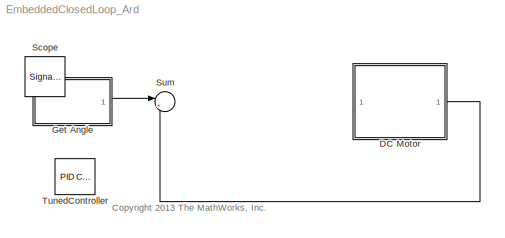
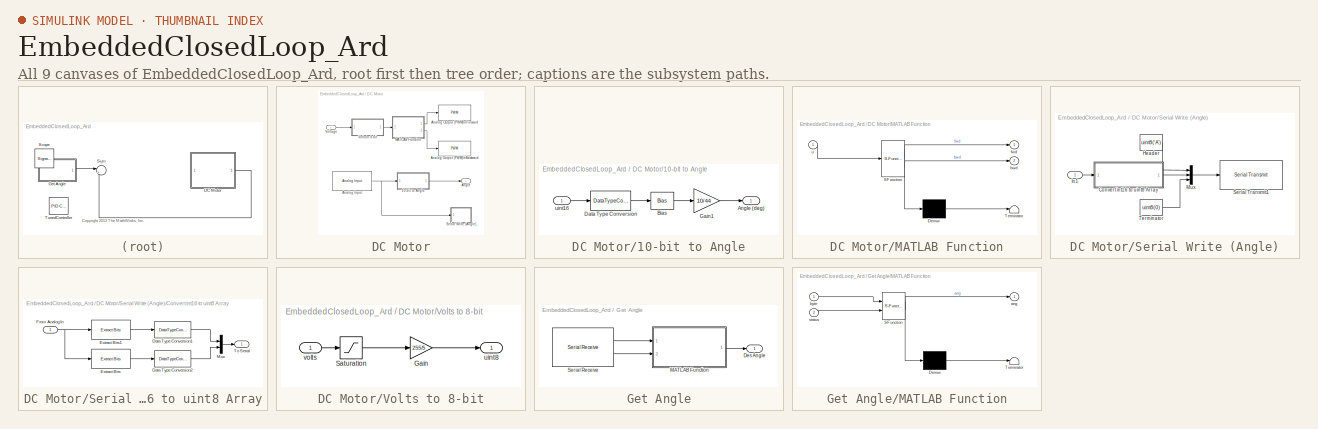
[diagram: thumbnail index - all 9 canvases of the model, root first then tree order]
MODEL EmbeddedClosedLoop_Ard
KIND model
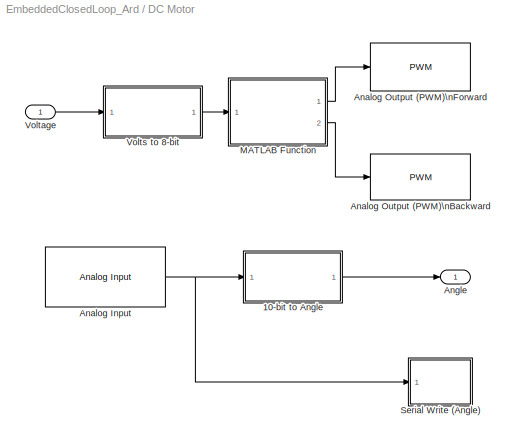
BLOCK [SubSystem] DC Motor
  FunctionWithSeparateData = off
  MaskHideContents = off
  MinAlgLoopOccurrences = off
  Opaque = off
  Ports = [1, 1]
  PropExecContextOutsideSubsystem = off
  RTWSystemCode = Auto
  RequestExecContextInheritance = off
  SID = 50
BLOCK [SubSystem] DC Motor/10-bit to Angle
  FunctionWithSeparateData = off
  MaskHideContents = off
  MinAlgLoopOccurrences = off
  Opaque = off
  Ports = [1, 1]
  PropExecContextOutsideSubsystem = off
  RTWSystemCode = Auto
  RequestExecContextInheritance = off
  SID = 59
BLOCK [Outport] DC Motor/10-bit to Angle/Angle (deg)
  IconDisplay = Port number
  SID = 88
BLOCK [Bias] DC Motor/10-bit to Angle/Bias
  Bias = -500
  SID = 85
  SaturateOnIntegerOverflow = off
BLOCK [DataTypeConversion] DC Motor/10-bit to Angle/Data Type Conversion
  OutDataTypeStr = double
  RndMeth = Floor
  SID = 86
  SaturateOnIntegerOverflow = off
BLOCK [Gain] DC Motor/10-bit to Angle/Gain1
  Gain = 10/44
  OutDataTypeStr = Inherit: Inherit via internal rule
  ParamDataTypeStr = Inherit: Inherit via internal rule
  SID = 87
  SaturateOnIntegerOverflow = off
BLOCK [Inport] DC Motor/10-bit to Angle/uint16
  IconDisplay = Port number
  SID = 84
BLOCK [Reference] DC Motor/Analog Input  REF=arduinolib/Analog Input
  Ports = [0, 1]
  SID = 58
  SourceBlock = arduinolib/Analog Input
  SourceType = Arduino Analog Input
  pinNumber = 0
  sampleTime = 0.01
BLOCK [Reference] DC Motor/Analog Output (PWM)\nBackward  REF=arduinolib/PWM
  Ports = [1]
  SID = 57
  SourceBlock = arduinolib/PWM
  SourceType = Arduino PWM
  pinNumber = 11
BLOCK [Reference] DC Motor/Analog Output (PWM)\nForward  REF=arduinolib/PWM
  Ports = [1]
  SID = 56
  SourceBlock = arduinolib/PWM
  SourceType = Arduino PWM
  pinNumber = 10
BLOCK [Outport] DC Motor/Angle
  IconDisplay = Port number
  SID = 53
BLOCK [SubSystem] DC Motor/MATLAB Function
  ErrorFcn = Stateflow.Translate.translate
  FunctionWithSeparateData = off
  MaskHideContents = off
  MinAlgLoopOccurrences = off
  Opaque = off
  PermitHierarchicalResolution = ExplicitOnly
  Ports = [1, 2]
  PropExecContextOutsideSubsystem = off
  RTWSystemCode = Auto
  RequestExecContextInheritance = off
  SFBlockType = MATLAB Function
  SID = 54
  TreatAsAtomicUnit = on
BLOCK [Demux] DC Motor/MATLAB Function/ Demux 
  Outputs = 1
  Ports = [1, 1]
  SID = 54::50
BLOCK [S-Function] DC Motor/MATLAB Function/ SFunction 
  EnableBusSupport = off
  FunctionName = sf_sfun
  PortCounts = [1 3]
  Ports = [1, 3]
  SID = 54::49
  Tag = Stateflow S-Function EmbeddedClosedLoop_Ard 1
BLOCK [Terminator] DC Motor/MATLAB Function/ Terminator 
  SID = 54::51
BLOCK [Outport] DC Motor/MATLAB Function/bwd
  IconDisplay = Port number
  Port = 2
  SID = 54::10
BLOCK [Outport] DC Motor/MATLAB Function/fwd
  IconDisplay = Port number
  SID = 54::5
BLOCK [Inport] DC Motor/MATLAB Function/u
  IconDisplay = Port number
  SID = 54::1
BLOCK [SubSystem] DC Motor/Serial Write (Angle)
  FunctionWithSeparateData = off
  MaskHideContents = off
  MinAlgLoopOccurrences = off
  Opaque = off
  Ports = [1]
  PropExecContextOutsideSubsystem = off
  RTWSystemCode = Auto
  RequestExecContextInheritance = off
  SID = 65
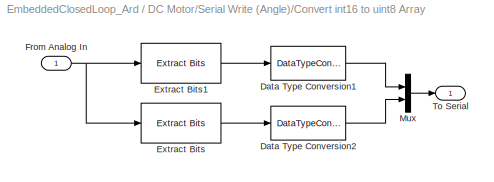
BLOCK [SubSystem] DC Motor/Serial Write (Angle)/Convert int16 to uint8 Array
  FunctionWithSeparateData = off
  MaskHideContents = off
  MinAlgLoopOccurrences = off
  Opaque = off
  Ports = [1, 1]
  PropExecContextOutsideSubsystem = off
  RTWSystemCode = Auto
  RequestExecContextInheritance = off
  SID = 60
BLOCK [DataTypeConversion] DC Motor/Serial Write (Angle)/Convert int16 to uint8 Array/Data Type Conversion1
  ConvertRealWorld = Stored Integer (SI)
  OutDataTypeStr = uint8
  RndMeth = Floor
  SID = 91
  SaturateOnIntegerOverflow = off
BLOCK [DataTypeConversion] DC Motor/Serial Write (Angle)/Convert int16 to uint8 Array/Data Type Conversion2
  ConvertRealWorld = Stored Integer (SI)
  OutDataTypeStr = uint8
  RndMeth = Floor
  SID = 92
  SaturateOnIntegerOverflow = off
BLOCK [Reference] DC Motor/Serial Write (Angle)/Convert int16 to uint8 Array/Extract Bits  REF=simulink/Logic and Bit\nOperations/Extract Bits
  Ports = [1, 1]
  SID = 93
  SourceBlock = simulink/Logic and Bit\nOperations/Extract Bits
  SourceType = Extract Bits
  bitIdxRange = [0 7]
  bitsToExtract = Upper half
  numBits = 8
  outScalingMode = Treat bit field as an integer
BLOCK [Reference] DC Motor/Serial Write (Angle)/Convert int16 to uint8 Array/Extract Bits1  REF=simulink/Logic and Bit\nOperations/Extract Bits
  Ports = [1, 1]
  SID = 94
  SourceBlock = simulink/Logic and Bit\nOperations/Extract Bits
  SourceType = Extract Bits
  bitIdxRange = [0 7]
  bitsToExtract = Lower half
  numBits = 8
  outScalingMode = Treat bit field as an integer
BLOCK [Inport] DC Motor/Serial Write (Angle)/Convert int16 to uint8 Array/From Analog In
  IconDisplay = Port number
  SID = 90
BLOCK [Mux] DC Motor/Serial Write (Angle)/Convert int16 to uint8 Array/Mux
  DisplayOption = bar
  Inputs = 2
  Ports = [2, 1]
  SID = 95
BLOCK [Outport] DC Motor/Serial Write (Angle)/Convert int16 to uint8 Array/To Serial
  IconDisplay = Port number
  SID = 96
BLOCK [Constant] DC Motor/Serial Write (Angle)/Header
  SID = 61
  Value = uint8('A')
BLOCK [Inport] DC Motor/Serial Write (Angle)/In1
  IconDisplay = Port number
  SID = 66
BLOCK [Mux] DC Motor/Serial Write (Angle)/Mux
  DisplayOption = bar
  Inputs = 3
  Ports = [3, 1]
  SID = 62
BLOCK [Reference] DC Motor/Serial Write (Angle)/Serial Transmit1  REF=arduinolib/Serial Transmit
  Ports = [1]
  SID = 64
  SourceBlock = arduinolib/Serial Transmit
  SourceType = Arduino Serial Transmit
  portNumber = 0
BLOCK [Constant] DC Motor/Serial Write (Angle)/Terminator
  SID = 63
  Value = uint8(0)
BLOCK [Inport] DC Motor/Voltage
  IconDisplay = Port number
  SID = 51
BLOCK [SubSystem] DC Motor/Volts to 8-bit
  FunctionWithSeparateData = off
  MaskHideContents = off
  MinAlgLoopOccurrences = off
  Opaque = off
  Ports = [1, 1]
  PropExecContextOutsideSubsystem = off
  RTWSystemCode = Auto
  RequestExecContextInheritance = off
  SID = 55
BLOCK [Gain] DC Motor/Volts to 8-bit/Gain
  Gain = 255/5
  OutDataTypeStr = int16
  ParamDataTypeStr = Inherit: Inherit via internal rule
  SID = 81
  SaturateOnIntegerOverflow = off
BLOCK [Saturate] DC Motor/Volts to 8-bit/Saturation
  InputPortMap = u0
  LowerLimit = -5
  Ports = [1, 1]
  SID = 82
  UpperLimit = 5
BLOCK [Outport] DC Motor/Volts to 8-bit/uint8
  IconDisplay = Port number
  SID = 83
BLOCK [Inport] DC Motor/Volts to 8-bit/volts
  IconDisplay = Port number
  SID = 80
BLOCK [SubSystem] Get Angle
  FunctionWithSeparateData = off
  MaskHideContents = off
  MinAlgLoopOccurrences = off
  Opaque = off
  Ports = [0, 1]
  PropExecContextOutsideSubsystem = off
  RTWSystemCode = Auto
  RequestExecContextInheritance = off
  SID = 31
BLOCK [Outport] Get Angle/Des Angle
  IconDisplay = Port number
  SID = 32
BLOCK [SubSystem] Get Angle/MATLAB Function
  ErrorFcn = Stateflow.Translate.translate
  FunctionWithSeparateData = off
  MaskHideContents = off
  MinAlgLoopOccurrences = off
  Opaque = off
  PermitHierarchicalResolution = ExplicitOnly
  Ports = [2, 1]
  PropExecContextOutsideSubsystem = off
  RTWSystemCode = Auto
  RequestExecContextInheritance = off
  SFBlockType = MATLAB Function
  SID = 30
  TreatAsAtomicUnit = on
BLOCK [Demux] Get Angle/MATLAB Function/ Demux 
  Outputs = 1
  Ports = [1, 1]
  SID = 30::32
BLOCK [S-Function] Get Angle/MATLAB Function/ SFunction 
  EnableBusSupport = off
  FunctionName = sf_sfun
  PortCounts = [2 2]
  Ports = [2, 2]
  SID = 30::31
  Tag = Stateflow S-Function EmbeddedClosedLoop_Ard 2
BLOCK [Terminator] Get Angle/MATLAB Function/ Terminator 
  SID = 30::33
BLOCK [Outport] Get Angle/MATLAB Function/ang
  IconDisplay = Port number
  SID = 30::5
BLOCK [Inport] Get Angle/MATLAB Function/byte
  IconDisplay = Port number
  SID = 30::1
BLOCK [Inport] Get Angle/MATLAB Function/status
  IconDisplay = Port number
  Port = 2
  SID = 30::30
BLOCK [Reference] Get Angle/Serial Receive  REF=arduinolib/Serial Receive
  Ports = [0, 2]
  SID = 47
  SourceBlock = arduinolib/Serial Receive
  SourceType = Arduino Serial Receive
  portNumber = 0
  sampleTime = 0.01
  showOutStatus = on
BLOCK [SignalViewerScope] Scope
  IOType = viewer
  MaxDataPoints = 7500
  NumInputPorts = 2
  Ports = []
  RefreshTime = 0.035000
  SID = 13
  ShowDataMarkers = off
  ShowLegends = off
  TimeRange = 4
  YMax = 80~60
  YMin = 0~-40
BLOCK [Sum] Sum
  IconShape = round
  InputSameDT = off
  Inputs = |+-
  OutDataTypeStr = Inherit: Inherit via internal rule
  Ports = [2, 1]
  SID = 8
  SaturateOnIntegerOverflow = off
BLOCK [Reference] TunedController  REF=simulink/Continuous/PID Controller
  AntiWindupMode = clamping
  Controller = PID
  D = 0.00709098323909587
  DOutDataTypeStr = Inherit: Inherit via internal rule
  DOutMax = []
  DOutMin = []
  DParamDataTypeStr = Inherit: Inherit via internal rule
  DParamMax = []
  DParamMin = []
  ExternalReset = none
  FilterContinuousStateAttributes = ''
  FilterMethod = Forward Euler
  FilterOutDataTypeStr = Inherit: Inherit via internal rule
  FilterOutMax = []
  FilterOutMin = []
  FilterRTWStateStorageClass = Auto
  FilterStateMustResolveToSignalObject = off
  Form = Parallel
  I = 0.0521328237727459
  IOutDataTypeStr = Inherit: Inherit via internal rule
  IOutMax = []
  IOutMin = []
  IParamDataTypeStr = Inherit: Inherit via internal rule
  IParamMax = []
  IParamMin = []
  IgnoreLimit = off
  InitialConditionForFilter = 0
  InitialConditionForIntegrator = 0
  InitialConditionSource = internal
  IntegratorContinuousStateAttributes = ''
  IntegratorMethod = Forward Euler
  IntegratorOutDataTypeStr = Inherit: Inherit via internal rule
  IntegratorOutMax = []
  IntegratorOutMin = []
  IntegratorRTWStateStorageClass = Auto
  IntegratorStateMustResolveToSignalObject = off
  Kb = 1
  KbOutDataTypeStr = Inherit: Inherit via internal rule
  KbOutMax = []
  KbOutMin = []
  KbParamDataTypeStr = Inherit: Inherit via internal rule
  KbParamMax = []
  KbParamMin = []
  Kt = 1
  KtOutDataTypeStr = Inherit: Inherit via internal rule
  KtOutMax = []
  KtOutMin = []
  KtParamDataTypeStr = Inherit: Inherit via internal rule
  KtParamMax = []
  KtParamMin = []
  LimitOutput = on
  LinearizeAsGain = off
  LockScale = off
  LowerSaturationLimit = -5
  N = 12.2947610037998
  NOutDataTypeStr = Inherit: Inherit via internal rule
  NOutMax = []
  NOutMin = []
  NParamDataTypeStr = Inherit: Inherit via internal rule
  NParamMax = []
  NParamMin = []
  P = 0.0932485816318116
  POutDataTypeStr = Inherit: Inherit via internal rule
  POutMax = []
  POutMin = []
  PParamDataTypeStr = Inherit: Inherit via internal rule
  PParamMax = []
  PParamMin = []
  Ports = [1, 1]
  RndMeth = Floor
  SID = 99
  SampleTime = 0.01
  SaturateOnIntegerOverflow = off
  SaturationOutDataTypeStr = Inherit: Same as input
  SaturationOutMax = []
  SaturationOutMin = []
  SourceBlock = simulink/Continuous/PID Controller
  SourceType = PID 1dof
  SumAccumDataTypeStr = Inherit: Inherit via internal rule
  SumDAccumDataTypeStr = Inherit: Inherit via internal rule
  SumDOutDataTypeStr = Inherit: Inherit via internal rule
  SumDOutMax = []
  SumDOutMin = []
  SumI1AccumDataTypeStr = Inherit: Inherit via internal rule
  SumI1OutDataTypeStr = Inherit: Inherit via internal rule
  SumI1OutMax = []
  SumI1OutMin = []
  SumI2AccumDataTypeStr = Inherit: Inherit via internal rule
  SumI2OutDataTypeStr = Inherit: Inherit via internal rule
  SumI2OutMax = []
  SumI2OutMin = []
  SumI3AccumDataTypeStr = Inherit: Inherit via internal rule
  SumI3OutDataTypeStr = Inherit: Inherit via internal rule
  SumI3OutMax = []
  SumI3OutMin = []
  SumOutDataTypeStr = Inherit: Inherit via internal rule
  SumOutMax = []
  SumOutMin = []
  TimeDomain = Discrete-time
  TrackingMode = off
  UpperSaturationLimit = 5
  ZeroCross = on
ANNOTATION (root): <copyright redacted>\n
LINE DC Motor/10-bit to Angle/Bias:1 -> DC Motor/10-bit to Angle/Gain1:1
LINE DC Motor/10-bit to Angle/Data Type Conversion:1 -> DC Motor/10-bit to Angle/Bias:1
LINE DC Motor/10-bit to Angle/Gain1:1 -> DC Motor/10-bit to Angle/Angle (deg):1
LINE DC Motor/10-bit to Angle/uint16:1 -> DC Motor/10-bit to Angle/Data Type Conversion:1
LINE DC Motor/10-bit to Angle:1 -> DC Motor/Angle:1
NET DC Motor/Analog Input:1 -> DC Motor/10-bit to Angle:1, DC Motor/Serial Write (Angle):1
LINE DC Motor/MATLAB Function/ Demux :1 -> DC Motor/MATLAB Function/ Terminator :1
LINE DC Motor/MATLAB Function/ SFunction :1 -> DC Motor/MATLAB Function/ Demux :1
LINE DC Motor/MATLAB Function/ SFunction :2 -> DC Motor/MATLAB Function/fwd:1
LINE DC Motor/MATLAB Function/ SFunction :3 -> DC Motor/MATLAB Function/bwd:1
LINE DC Motor/MATLAB Function/u:1 -> DC Motor/MATLAB Function/ SFunction :1
LINE DC Motor/MATLAB Function:1 -> DC Motor/Analog Output (PWM)\nForward:1
LINE DC Motor/MATLAB Function:2 -> DC Motor/Analog Output (PWM)\nBackward:1
LINE DC Motor/Serial Write (Angle)/Convert int16 to uint8 Array/Data Type Conversion1:1 -> DC Motor/Serial Write (Angle)/Convert int16 to uint8 Array/Mux:1
LINE DC Motor/Serial Write (Angle)/Convert int16 to uint8 Array/Data Type Conversion2:1 -> DC Motor/Serial Write (Angle)/Convert int16 to uint8 Array/Mux:2
LINE DC Motor/Serial Write (Angle)/Convert int16 to uint8 Array/Extract Bits1:1 -> DC Motor/Serial Write (Angle)/Convert int16 to uint8 Array/Data Type Conversion1:1
LINE DC Motor/Serial Write (Angle)/Convert int16 to uint8 Array/Extract Bits:1 -> DC Motor/Serial Write (Angle)/Convert int16 to uint8 Array/Data Type Conversion2:1
NET DC Motor/Serial Write (Angle)/Convert int16 to uint8 Array/From Analog In:1 -> DC Motor/Serial Write (Angle)/Convert int16 to uint8 Array/Extract Bits1:1, DC Motor/Serial Write (Angle)/Convert int16 to uint8 Array/Extract Bits:1
LINE DC Motor/Serial Write (Angle)/Convert int16 to uint8 Array/Mux:1 -> DC Motor/Serial Write (Angle)/Convert int16 to uint8 Array/To Serial:1
LINE DC Motor/Serial Write (Angle)/Convert int16 to uint8 Array:1 -> DC Motor/Serial Write (Angle)/Mux:2
LINE DC Motor/Serial Write (Angle)/Header:1 -> DC Motor/Serial Write (Angle)/Mux:1
LINE DC Motor/Serial Write (Angle)/In1:1 -> DC Motor/Serial Write (Angle)/Convert int16 to uint8 Array:1
LINE DC Motor/Serial Write (Angle)/Mux:1 -> DC Motor/Serial Write (Angle)/Serial Transmit1:1
LINE DC Motor/Serial Write (Angle)/Terminator:1 -> DC Motor/Serial Write (Angle)/Mux:3
LINE DC Motor/Voltage:1 -> DC Motor/Volts to 8-bit:1
LINE DC Motor/Volts to 8-bit/Gain:1 -> DC Motor/Volts to 8-bit/uint8:1
LINE DC Motor/Volts to 8-bit/Saturation:1 -> DC Motor/Volts to 8-bit/Gain:1
LINE DC Motor/Volts to 8-bit/volts:1 -> DC Motor/Volts to 8-bit/Saturation:1
LINE DC Motor/Volts to 8-bit:1 -> DC Motor/MATLAB Function:1
LINE DC Motor:1 -> Sum:2
LINE Get Angle/MATLAB Function/ Demux :1 -> Get Angle/MATLAB Function/ Terminator :1
LINE Get Angle/MATLAB Function/ SFunction :1 -> Get Angle/MATLAB Function/ Demux :1
LINE Get Angle/MATLAB Function/ SFunction :2 -> Get Angle/MATLAB Function/ang:1
LINE Get Angle/MATLAB Function/byte:1 -> Get Angle/MATLAB Function/ SFunction :1
LINE Get Angle/MATLAB Function/status:1 -> Get Angle/MATLAB Function/ SFunction :2
LINE Get Angle/MATLAB Function:1 -> Get Angle/Des Angle:1
LINE Get Angle/Serial Receive:1 -> Get Angle/MATLAB Function:1
LINE Get Angle/Serial Receive:2 -> Get Angle/MATLAB Function:2
LINE Get Angle:1 -> Sum:1
note: NET lines group one-source signal fan-out (src -> all destinations, sorted); 1:1 wires keep LINE
CHART DC Motor/MATLAB Function states=1 transitions=1
  STATE_LABEL 'eML_blk_kernel()'
CHART Get Angle/MATLAB Function states=1 transitions=1
  STATE_LABEL 'eML_blk_kernel()'
